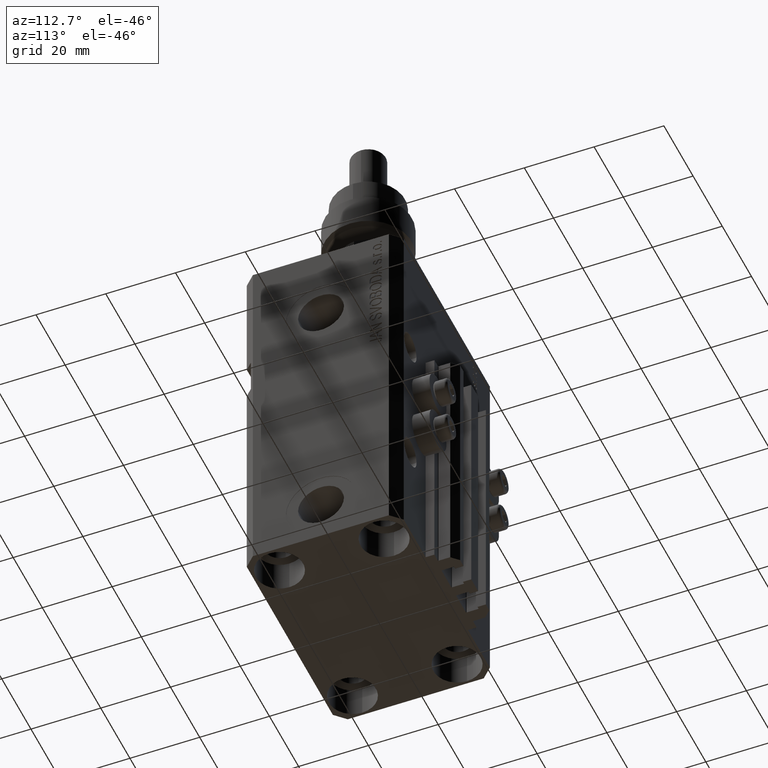
[diagram: clean part render]
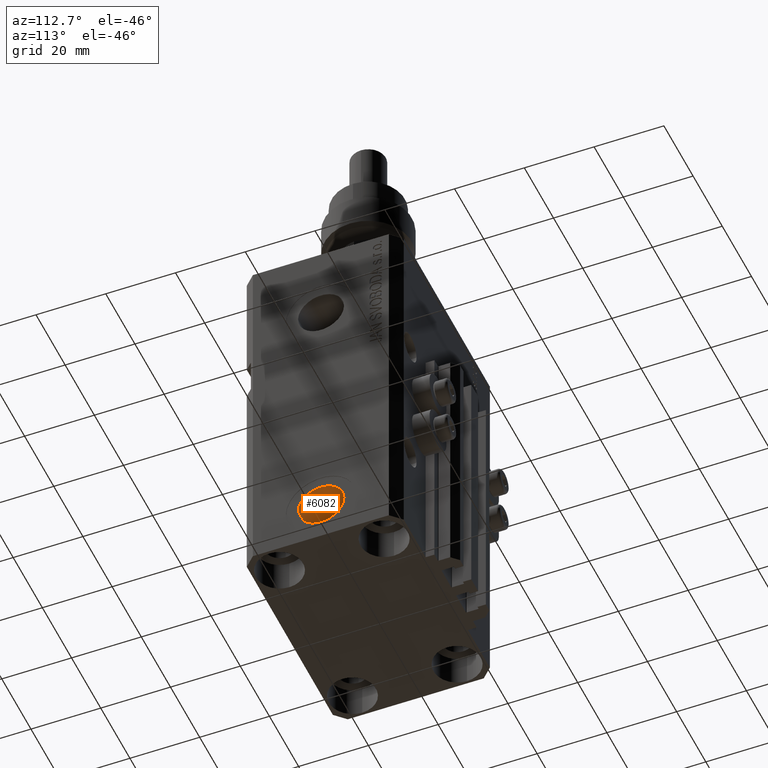
[diagram: same view with one face highlighted and labeled with its STEP entity id]
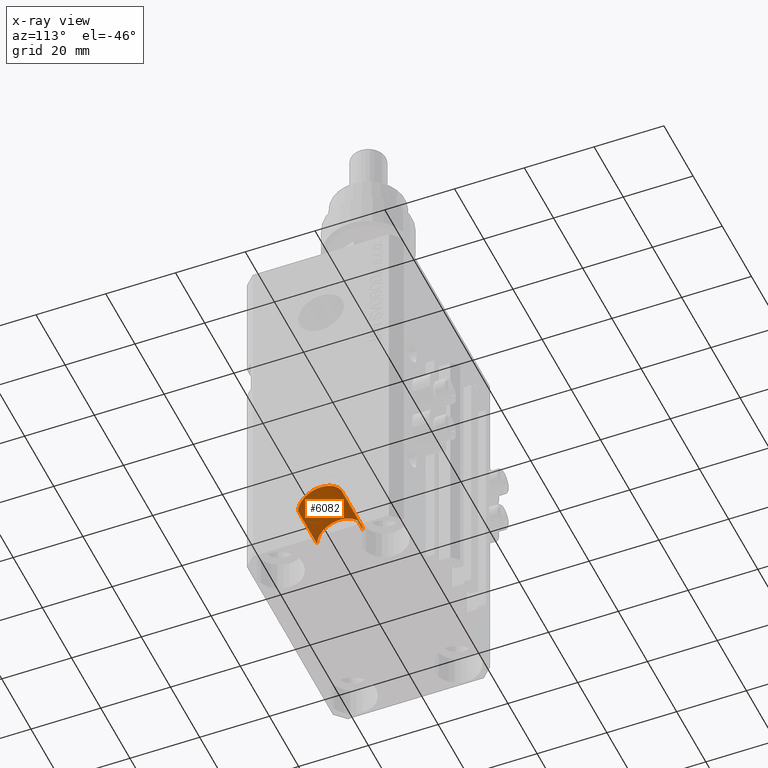
[diagram: x-ray of the same camera — body ghosted, the highlighted face saturated]
A machine part, auxiliary view. The second image highlights one B-rep face of the part: STEP entity #6082.
The next image is the same camera in x-ray: the body ghosted, the highlighted face saturated — about 0% of this face is hidden behind the body in this view.
In plain terms, the highlighted cylindrical surface (edge-blend (fillet) strip) has radius 6.58 mm, axis along (1, -0, 0).
Its self-contained STEP definition (entity closure, byte-faithful):
#1295 = AXIS2_PLACEMENT_3D ( 'NONE', #14770, #2886, #37742 ) ;
#1575 = DIRECTION ( 'NONE',  ( 1.000000000000000000, -1.334402673828349292E-14, -0.000000000000000000 ) ) ;
#2878 = CARTESIAN_POINT ( 'NONE',  ( 32.39999999999677271, -4.323464663203420381E-13, -95.00000000000000000 ) ) ;
#2886 = DIRECTION ( 'NONE',  ( 1.000000000000000000, -1.334402673828349292E-14, -0.000000000000000000 ) ) ;
#4224 = DIRECTION ( 'NONE',  ( 1.000000000000000000, -1.334402673828349134E-14, 0.000000000000000000 ) ) ;
#4825 = EDGE_CURVE ( 'NONE', #50036, #6746, #41315, .T. ) ;
#6082 = ADVANCED_FACE ( 'NONE', ( #30513 ), #46512, .F. ) ;
#6746 = VERTEX_POINT ( 'NONE', #8619 ) ;
#8619 = CARTESIAN_POINT ( 'NONE',  ( 32.39999999999668034, -6.580000000000419291, -95.00000000000000000 ) ) ;
#9636 = ORIENTED_EDGE ( 'NONE', *, *, #4825, .F. ) ;
#10030 = AXIS2_PLACEMENT_3D ( 'NONE', #12228, #4224, #43470 ) ;
#12228 = CARTESIAN_POINT ( 'NONE',  ( 19.39999999999677271, -2.588741187226566333E-13, -95.00000000000000000 ) ) ;
#14215 = EDGE_LOOP ( 'NONE', ( #9636, #38844, #48032, #31101 ) ) ;
#14770 = CARTESIAN_POINT ( 'NONE',  ( 19.39999999999677271, -2.588741187226566333E-13, -95.00000000000000000 ) ) ;
#16096 = CARTESIAN_POINT ( 'NONE',  ( 19.39999999999686153, 6.579999999999729177, -95.00000000000000000 ) ) ;
#17364 = VECTOR ( 'NONE', #36177, 1000.000000000000000 ) ;
#19955 = CARTESIAN_POINT ( 'NONE',  ( 19.39999999999686153, 6.579999999999729177, -95.00000000000000000 ) ) ;
#20224 = VECTOR ( 'NONE', #1575, 1000.000000000000000 ) ;
#22331 = CARTESIAN_POINT ( 'NONE',  ( 19.39999999999668745, -6.580000000000246096, -95.00000000000000000 ) ) ;
#22787 = EDGE_CURVE ( 'NONE', #48262, #32350, #43436, .T. ) ;
#25283 = CARTESIAN_POINT ( 'NONE',  ( 32.39999999999686509, 6.579999999999555982, -95.00000000000000000 ) ) ;
#26388 = DIRECTION ( 'NONE',  ( 1.370906090437600963E-14, 1.000000000000000000, 0.000000000000000000 ) ) ;
#26477 = EDGE_CURVE ( 'NONE', #48262, #50036, #32310, .T. ) ;
#28949 = CARTESIAN_POINT ( 'NONE',  ( 19.39999999999668745, -6.580000000000246096, -95.00000000000000000 ) ) ;
#30513 = FACE_OUTER_BOUND ( 'NONE', #14215, .T. ) ;
#31101 = ORIENTED_EDGE ( 'NONE', *, *, #44438, .T. ) ;
#32310 = CIRCLE ( 'NONE', #10030, 6.579999999999987637 ) ;
#32350 = VERTEX_POINT ( 'NONE', #25283 ) ;
#34841 = CIRCLE ( 'NONE', #47242, 6.579999999999987637 ) ;
#36177 = DIRECTION ( 'NONE',  ( 1.000000000000000000, -1.334402673828349292E-14, -0.000000000000000000 ) ) ;
#37735 = DIRECTION ( 'NONE',  ( 1.000000000000000000, -1.334402673828349134E-14, 0.000000000000000000 ) ) ;
#37742 = DIRECTION ( 'NONE',  ( 1.318178933113077855E-14, 1.000000000000000000, 0.000000000000000000 ) ) ;
#38844 = ORIENTED_EDGE ( 'NONE', *, *, #26477, .F. ) ;
#41315 = LINE ( 'NONE', #28949, #20224 ) ;
#43436 = LINE ( 'NONE', #19955, #17364 ) ;
#43470 = DIRECTION ( 'NONE',  ( 1.318178933113077855E-14, 1.000000000000000000, 0.000000000000000000 ) ) ;
#44438 = EDGE_CURVE ( 'NONE', #32350, #6746, #34841, .T. ) ;
#46512 = CYLINDRICAL_SURFACE ( 'NONE', #1295, 6.579999999999987637 ) ;
#47242 = AXIS2_PLACEMENT_3D ( 'NONE', #2878, #37735, #26388 ) ;
#48032 = ORIENTED_EDGE ( 'NONE', *, *, #22787, .T. ) ;
#48262 = VERTEX_POINT ( 'NONE', #16096 ) ;
#50036 = VERTEX_POINT ( 'NONE', #22331 ) ;